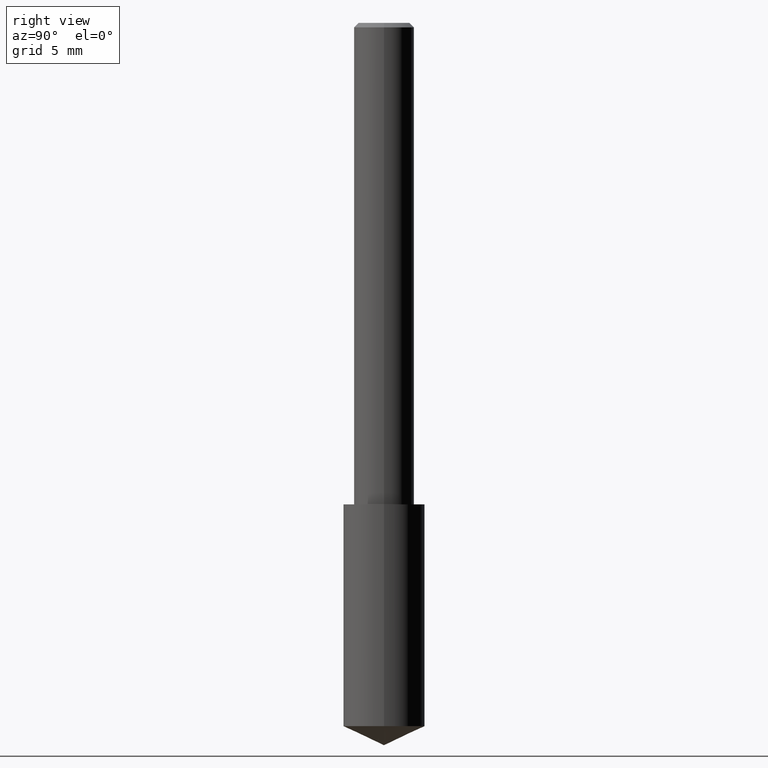
[diagram: clean part render]
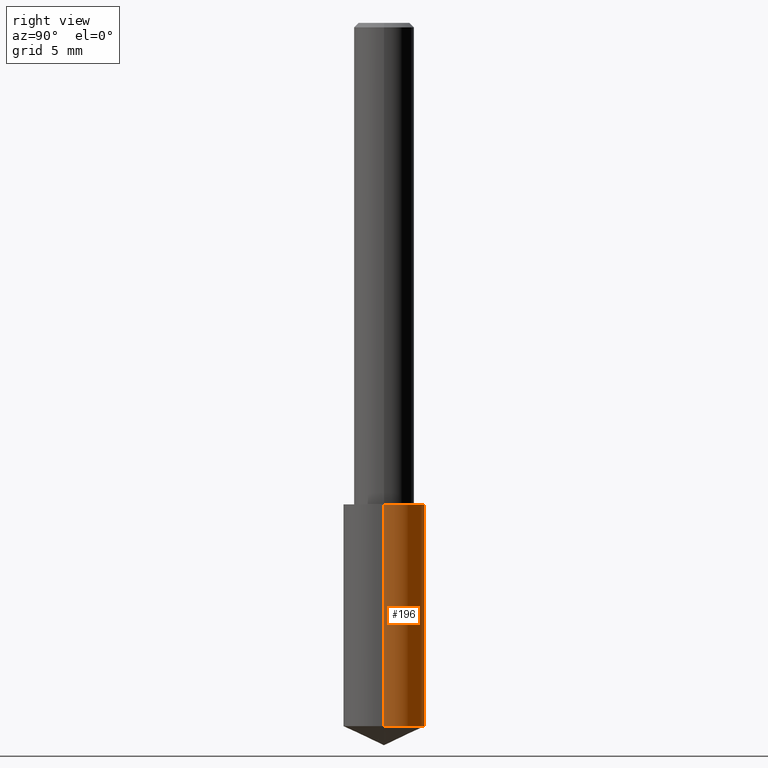
[diagram: same view with one face highlighted and labeled with its STEP entity id]
A machine part, right view. The second image highlights one B-rep face of the part: STEP entity #196.
In plain terms, the highlighted cylindrical surface (partial cylindrical patch) has radius 2.1501 mm, axis along (-0, 0, 1).
Its self-contained STEP definition (entity closure, byte-faithful):
#28 = FACE_OUTER_BOUND ( 'NONE', #53, .T. ) ;
#39 = CYLINDRICAL_SURFACE ( 'NONE', #319, 0.08465000000000001690 ) ;
#50 = VECTOR ( 'NONE', #153, 39.37007874015748143 ) ;
#53 = EDGE_LOOP ( 'NONE', ( #174, #257, #219, #224 ) ) ;
#76 = VERTEX_POINT ( 'NONE', #234 ) ;
#82 = VERTEX_POINT ( 'NONE', #120 ) ;
#92 = DIRECTION ( 'NONE',  ( -2.445468806185136597E-29, 3.491481338843145583E-15, 1.000000000000000000 ) ) ;
#93 = DIRECTION ( 'NONE',  ( -2.445468806185136597E-29, 3.491481338843145583E-15, 1.000000000000000000 ) ) ;
#95 = DIRECTION ( 'NONE',  ( 1.000000000000000000, -6.982962677686269077E-15, 0.000000000000000000 ) ) ;
#120 = CARTESIAN_POINT ( 'NONE',  ( -0.08464999999999998914, -4.497928537652440240E-15, -1.460527056737179308 ) ) ;
#127 = EDGE_CURVE ( 'NONE', #76, #82, #334, .T. ) ;
#129 = CARTESIAN_POINT ( 'NONE',  ( 0.08465000000000001690, -4.082589129509289174E-15, -1.000000000000000222 ) ) ;
#142 = VERTEX_POINT ( 'NONE', #129 ) ;
#153 = DIRECTION ( 'NONE',  ( -2.445468806185136877E-29, 3.491481338843145188E-15, 1.000000000000000000 ) ) ;
#158 = CARTESIAN_POINT ( 'NONE',  ( 2.445468806185136877E-29, -3.491481338843145977E-15, -1.000000000000000222 ) ) ;
#161 = CARTESIAN_POINT ( 'NONE',  ( -0.08465000000000001690, -3.693967725337331089E-15, -1.000000000000000222 ) ) ;
#174 = ORIENTED_EDGE ( 'NONE', *, *, #127, .T. ) ;
#181 = CIRCLE ( 'NONE', #289, 0.08465000000000001690 ) ;
#196 = ADVANCED_FACE ( 'NONE', ( #28 ), #39, .T. ) ;
#210 = VECTOR ( 'NONE', #337, 39.37007874015748143 ) ;
#212 = LINE ( 'NONE', #338, #50 ) ;
#219 = ORIENTED_EDGE ( 'NONE', *, *, #300, .F. ) ;
#224 = ORIENTED_EDGE ( 'NONE', *, *, #296, .F. ) ;
#232 = AXIS2_PLACEMENT_3D ( 'NONE', #235, #93, #333 ) ;
#234 = CARTESIAN_POINT ( 'NONE',  ( 0.08464999999999998914, -5.690510754139508265E-15, -1.460527056737179308 ) ) ;
#235 = CARTESIAN_POINT ( 'NONE',  ( 3.571673357840160726E-29, -5.099402963473365069E-15, -1.460527056737179308 ) ) ;
#247 = EDGE_CURVE ( 'NONE', #82, #268, #283, .T. ) ;
#257 = ORIENTED_EDGE ( 'NONE', *, *, #247, .T. ) ;
#268 = VERTEX_POINT ( 'NONE', #161 ) ;
#281 = CARTESIAN_POINT ( 'NONE',  ( -0.08465000000000001690, -2.890006913022221543E-15, -1.000000000000000222 ) ) ;
#282 = CARTESIAN_POINT ( 'NONE',  ( 2.445468806185137438E-29, -3.491481338843146371E-15, -1.000000000000000222 ) ) ;
#283 = LINE ( 'NONE', #281, #210 ) ;
#286 = DIRECTION ( 'NONE',  ( -2.445468806185136597E-29, 3.491481338843145583E-15, 1.000000000000000000 ) ) ;
#289 = AXIS2_PLACEMENT_3D ( 'NONE', #158, #92, #95 ) ;
#296 = EDGE_CURVE ( 'NONE', #76, #142, #212, .T. ) ;
#300 = EDGE_CURVE ( 'NONE', #142, #268, #181, .T. ) ;
#318 = DIRECTION ( 'NONE',  ( 1.000000000000000000, -6.982962677686263555E-15, 0.000000000000000000 ) ) ;
#319 = AXIS2_PLACEMENT_3D ( 'NONE', #282, #286, #318 ) ;
#333 = DIRECTION ( 'NONE',  ( 1.000000000000000000, -6.982962677686269077E-15, 0.000000000000000000 ) ) ;
#334 = CIRCLE ( 'NONE', #232, 0.08465000000000001690 ) ;
#337 = DIRECTION ( 'NONE',  ( -2.445468806185136877E-29, 3.491481338843145188E-15, 1.000000000000000000 ) ) ;
#338 = CARTESIAN_POINT ( 'NONE',  ( 0.08465000000000001690, -4.082589129509289174E-15, -1.000000000000000222 ) ) ;